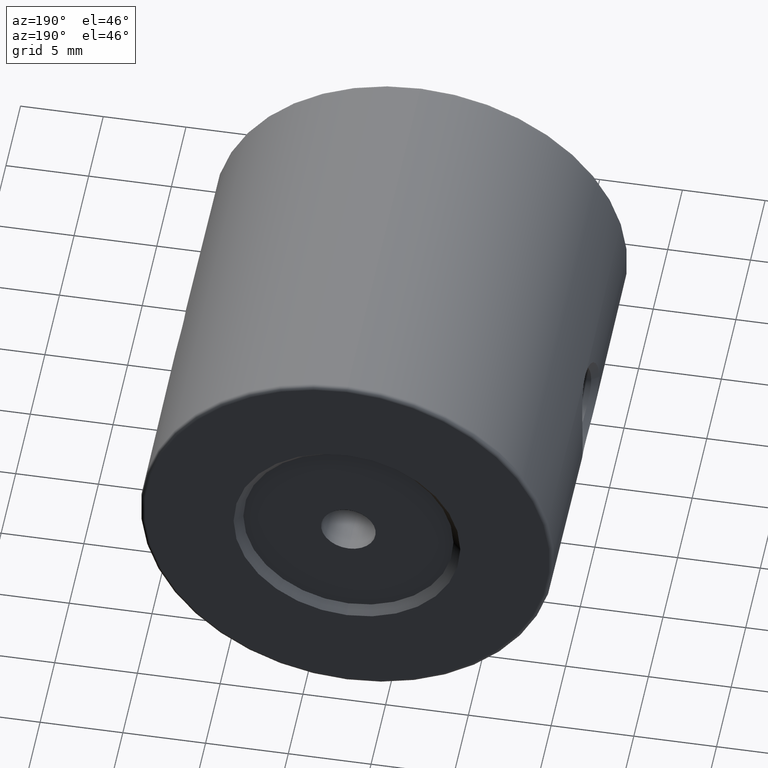
[diagram: clean part render]
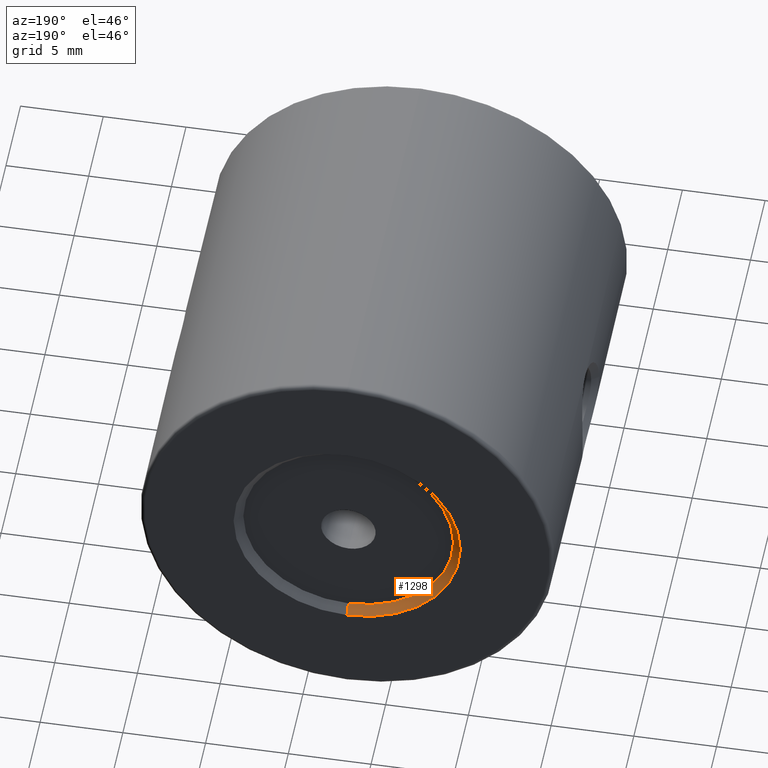
[diagram: same view with one face highlighted and labeled with its STEP entity id]
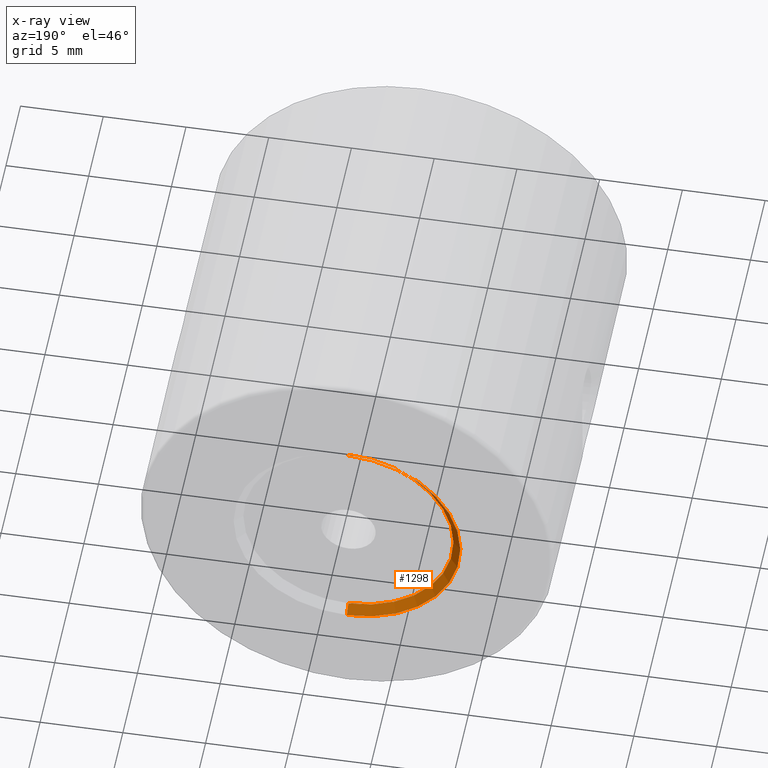
[diagram: x-ray of the same camera — body ghosted, the highlighted face saturated]
A machine part, auxiliary view. The second image highlights one B-rep face of the part: STEP entity #1298.
The next image is the same camera in x-ray: the body ghosted, the highlighted face saturated — about 0% of this face is hidden behind the body in this view.
In plain terms, the highlighted conical surface has half-angle 45 deg.
Its self-contained STEP definition (entity closure, byte-faithful):
#12 = DIRECTION ( 'NONE',  ( 0.0000000000000000000, 0.0000000000000000000, 1.000000000000000000 ) ) ;
#201 = EDGE_LOOP ( 'NONE', ( #487, #2152, #777, #3277 ) ) ;
#427 = VERTEX_POINT ( 'NONE', #2016 ) ;
#438 = CARTESIAN_POINT ( 'NONE',  ( -22.50520183104453409, 14.09825218476938780, 56.85000000000000142 ) ) ;
#487 = ORIENTED_EDGE ( 'NONE', *, *, #1592, .F. ) ;
#585 = VERTEX_POINT ( 'NONE', #438 ) ;
#762 = VERTEX_POINT ( 'NONE', #2076 ) ;
#777 = ORIENTED_EDGE ( 'NONE', *, *, #1068, .F. ) ;
#981 = CARTESIAN_POINT ( 'NONE',  ( -22.50520183104453409, 13.59825218476938780, 50.00000000000000000 ) ) ;
#1068 = EDGE_CURVE ( 'NONE', #585, #2744, #3223, .T. ) ;
#1188 = CARTESIAN_POINT ( 'NONE',  ( -22.50520183104453409, 14.09825218476938780, 43.14999999999999858 ) ) ;
#1298 = ADVANCED_FACE ( 'NONE', ( #1855 ), #1801, .F. ) ;
#1367 = CARTESIAN_POINT ( 'NONE',  ( -22.50520183104453409, 13.59825218476938069, 50.00000000000000000 ) ) ;
#1592 = EDGE_CURVE ( 'NONE', #427, #762, #2377, .T. ) ;
#1801 = CONICAL_SURFACE ( 'NONE', #2017, 6.350000000000001421, 0.7853981633974439491 ) ;
#1815 = DIRECTION ( 'NONE',  ( 0.0000000000000000000, 0.7071067811865505703, 0.7071067811865444641 ) ) ;
#1855 = FACE_OUTER_BOUND ( 'NONE', #201, .T. ) ;
#2001 = EDGE_CURVE ( 'NONE', #427, #2744, #3324, .T. ) ;
#2016 = CARTESIAN_POINT ( 'NONE',  ( -22.50520183104453409, 13.59825218476938780, 43.64999999999999858 ) ) ;
#2017 = AXIS2_PLACEMENT_3D ( 'NONE', #1367, #2701, #2464 ) ;
#2076 = CARTESIAN_POINT ( 'NONE',  ( -22.50520183104453409, 13.59825218476938780, 56.35000000000000142 ) ) ;
#2112 = LINE ( 'NONE', #3203, #3446 ) ;
#2152 = ORIENTED_EDGE ( 'NONE', *, *, #2001, .T. ) ;
#2377 = CIRCLE ( 'NONE', #2766, 6.350000000000001421 ) ;
#2464 = DIRECTION ( 'NONE',  ( 0.0000000000000000000, 0.0000000000000000000, 1.000000000000000000 ) ) ;
#2476 = CARTESIAN_POINT ( 'NONE',  ( -22.50520183104453409, 13.59825218476938069, 43.64999999999999858 ) ) ;
#2483 = VECTOR ( 'NONE', #2514, 1000.000000000000000 ) ;
#2514 = DIRECTION ( 'NONE',  ( 8.659560562354895880E-17, 0.7071067811865505703, -0.7071067811865444641 ) ) ;
#2661 = AXIS2_PLACEMENT_3D ( 'NONE', #3201, #2970, #12 ) ;
#2701 = DIRECTION ( 'NONE',  ( 0.0000000000000000000, 1.000000000000000000, 0.0000000000000000000 ) ) ;
#2744 = VERTEX_POINT ( 'NONE', #1188 ) ;
#2766 = AXIS2_PLACEMENT_3D ( 'NONE', #981, #3155, #2837 ) ;
#2837 = DIRECTION ( 'NONE',  ( 0.0000000000000000000, 0.0000000000000000000, 1.000000000000000000 ) ) ;
#2970 = DIRECTION ( 'NONE',  ( -0.0000000000000000000, -1.000000000000000000, -0.0000000000000000000 ) ) ;
#3009 = EDGE_CURVE ( 'NONE', #762, #585, #2112, .T. ) ;
#3155 = DIRECTION ( 'NONE',  ( 0.0000000000000000000, 1.000000000000000000, 0.0000000000000000000 ) ) ;
#3201 = CARTESIAN_POINT ( 'NONE',  ( -22.50520183104453409, 14.09825218476938780, 50.00000000000000000 ) ) ;
#3203 = CARTESIAN_POINT ( 'NONE',  ( -22.50520183104453409, 13.59825218476938069, 56.35000000000000142 ) ) ;
#3223 = CIRCLE ( 'NONE', #2661, 6.850000000000002309 ) ;
#3277 = ORIENTED_EDGE ( 'NONE', *, *, #3009, .F. ) ;
#3324 = LINE ( 'NONE', #2476, #2483 ) ;
#3446 = VECTOR ( 'NONE', #1815, 1000.000000000000000 ) ;